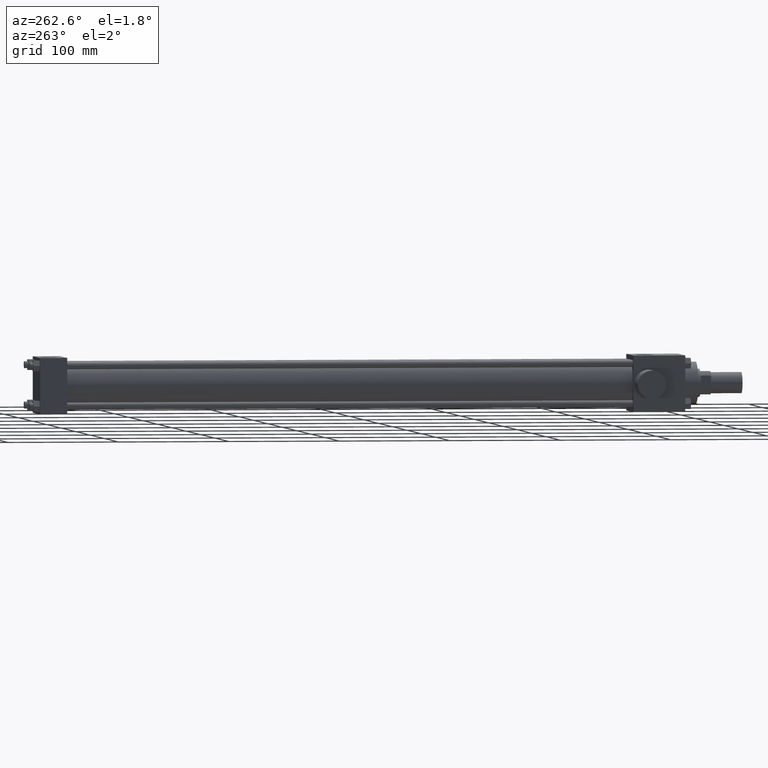
[diagram: clean part render]
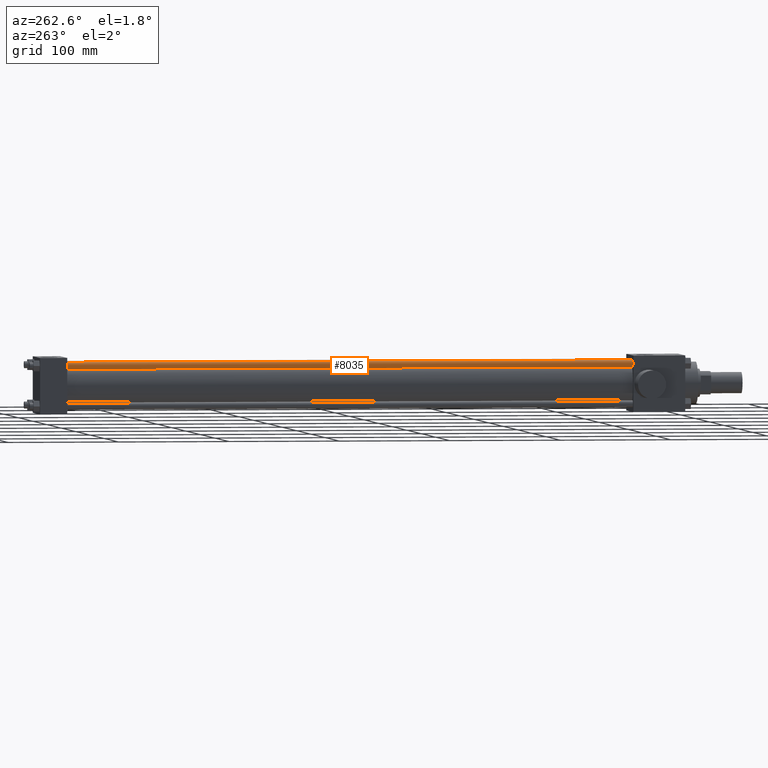
[diagram: same view with one face highlighted and labeled with its STEP entity id]
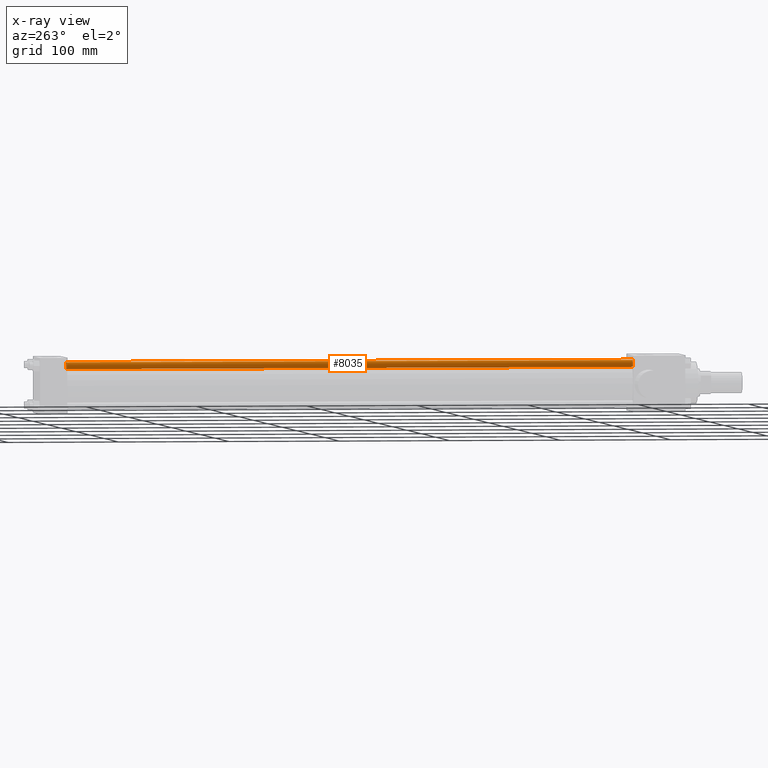
[diagram: x-ray of the same camera — body ghosted, the highlighted face saturated]
A machine part, auxiliary view. The second image highlights one B-rep face of the part: STEP entity #8035.
The next image is the same camera in x-ray: the body ghosted, the highlighted face saturated — about 0% of this face is hidden behind the body in this view.
In plain terms, the highlighted cylindrical surface (bore or boss wall) has radius 3.175 mm, axis along (0, -1, 0).
Its self-contained STEP definition (entity closure, byte-faithful):
#509=EDGE_CURVE('',#515,#515,#510,.T.);
#510=CIRCLE('',#511,3.175000000E+000);
#511=AXIS2_PLACEMENT_3D('',#512,#513,#514);
#512=CARTESIAN_POINT('',(-1.816100000E+001,7.223125000E+001,1.816100000E+001));
#513=DIRECTION('',(0.0E+000,1.0E+000,0.0E+000));
#514=DIRECTION('',(1.0E+000,0.0E+000,0.0E+000));
#515=VERTEX_POINT('',#516);
#516=CARTESIAN_POINT('',(-1.498600000E+001,7.223125000E+001,1.816100000E+001));
#2397=FACE_OUTER_BOUND('',#2399,.T.);
#2398=FACE_BOUND('',#2400,.T.);
#2399=EDGE_LOOP('',(#2401));
#2400=EDGE_LOOP('',(#2402));
#2401=ORIENTED_EDGE('',*,*,#2456,.F.);
#2402=ORIENTED_EDGE('',*,*,#509,.T.);
#2403=CYLINDRICAL_SURFACE('',#2404,3.175000000E+000);
#2404=AXIS2_PLACEMENT_3D('',#2405,#2406,#2407);
#2405=CARTESIAN_POINT('',(-1.816100000E+001,5.849937500E+002,1.816100000E+001));
#2406=DIRECTION('',(0.0E+000,-1.0E+000,0.0E+000));
#2407=DIRECTION('',(0.0E+000,0.0E+000,-1.0E+000));
#2456=EDGE_CURVE('',#2462,#2462,#2457,.T.);
#2457=CIRCLE('',#2458,3.175000000E+000);
#2458=AXIS2_PLACEMENT_3D('',#2459,#2460,#2461);
#2459=CARTESIAN_POINT('',(-1.816100000E+001,5.849937500E+002,1.816100000E+001));
#2460=DIRECTION('',(0.0E+000,1.0E+000,0.0E+000));
#2461=DIRECTION('',(1.0E+000,0.0E+000,0.0E+000));
#2462=VERTEX_POINT('',#2463);
#2463=CARTESIAN_POINT('',(-1.498600000E+001,5.849937500E+002,1.816100000E+001));
#8035=ADVANCED_FACE('',(#2397,#2398),#2403,.T.);